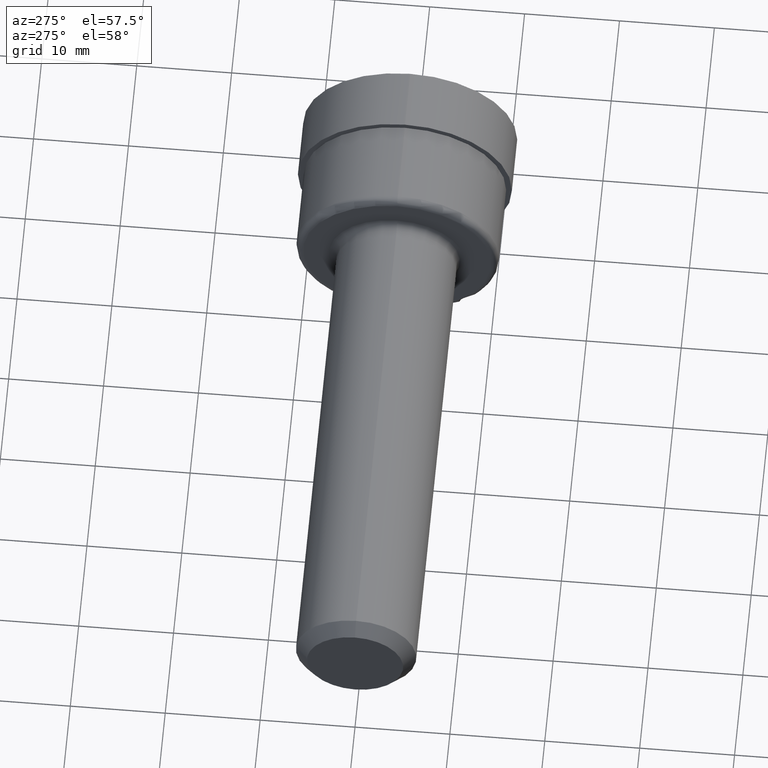
[diagram: clean part render]
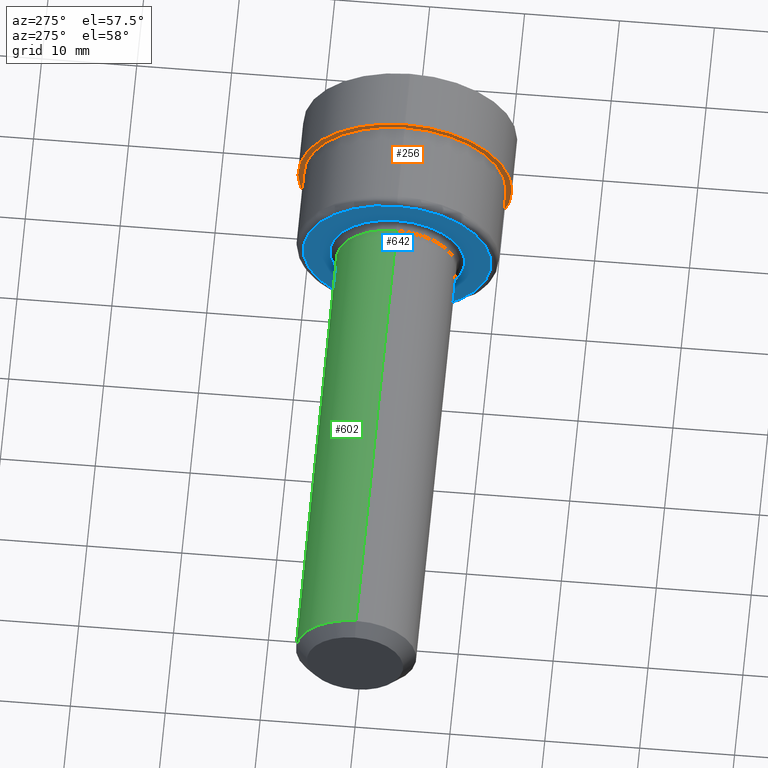
[diagram: same view with three faces highlighted in distinct colors, each labeled with its STEP entity id]
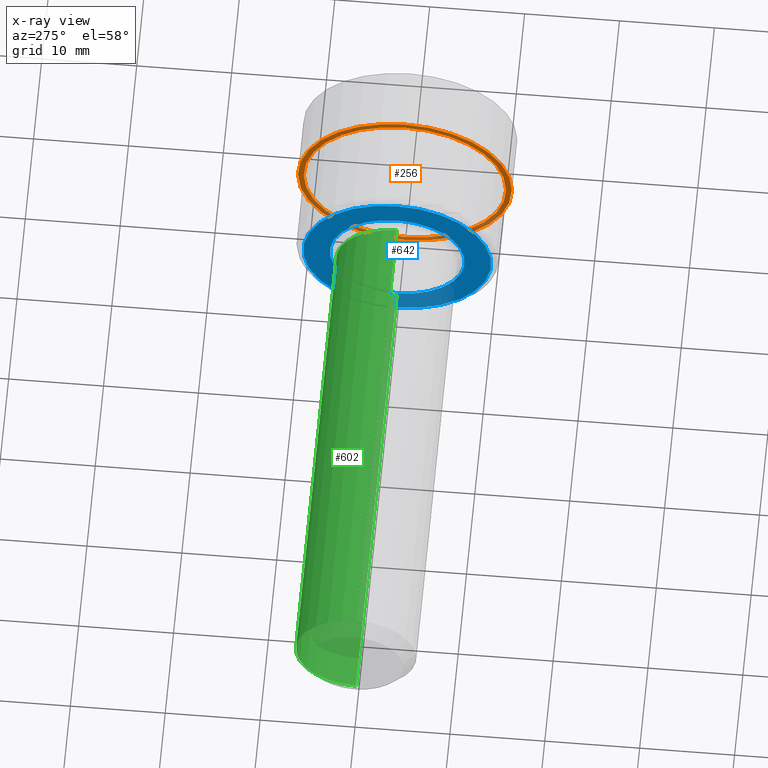
[diagram: x-ray of the same camera — body ghosted, the three highlighted faces saturated]
A machine part, auxiliary view with three faces highlighted in distinct colors.
The next image is the same camera in x-ray (body ghosted, the three faces saturated) — at least one of them is partly hidden behind the body in this view.
Their STEP definitions:

[orange] entity #256 — the highlighted planar face has unit normal (1, 0, 0).
#13 = DIRECTION ( 'NONE',  ( 1.000000000000000000, 0.000000000000000000, 0.000000000000000000 ) ) ;
#60 = DIRECTION ( 'NONE',  ( 0.000000000000000000, 0.000000000000000000, -1.000000000000000000 ) ) ;
#113 = FACE_OUTER_BOUND ( 'NONE', #147, .T. ) ;
#128 = CARTESIAN_POINT ( 'NONE',  ( 2.366999999999999993, 0.000000000000000000, 0.000000000000000000 ) ) ;
#133 = AXIS2_PLACEMENT_3D ( 'NONE', #327, #13, #60 ) ;
#138 = VERTEX_POINT ( 'NONE', #598 ) ;
#147 = EDGE_LOOP ( 'NONE', ( #332, #390 ) ) ;
#154 = CIRCLE ( 'NONE', #464, 0.4199999999999999845 ) ;
#162 = CIRCLE ( 'NONE', #656, 0.4440000000000000058 ) ;
#165 = EDGE_CURVE ( 'NONE', #628, #581, #162, .T. ) ;
#202 = EDGE_CURVE ( 'NONE', #138, #606, #575, .T. ) ;
#219 = DIRECTION ( 'NONE',  ( 0.000000000000000000, 0.000000000000000000, 1.000000000000000000 ) ) ;
#221 = CARTESIAN_POINT ( 'NONE',  ( 2.366999999999999993, 0.000000000000000000, 0.000000000000000000 ) ) ;
#228 = DIRECTION ( 'NONE',  ( 0.000000000000000000, 0.000000000000000000, 1.000000000000000000 ) ) ;
#229 = EDGE_LOOP ( 'NONE', ( #544, #676 ) ) ;
#256 = ADVANCED_FACE ( 'NONE', ( #374, #113 ), #446, .F. ) ;
#262 = DIRECTION ( 'NONE',  ( -1.000000000000000000, -0.000000000000000000, -0.000000000000000000 ) ) ;
#277 = EDGE_CURVE ( 'NONE', #606, #138, #154, .T. ) ;
#321 = DIRECTION ( 'NONE',  ( -1.000000000000000000, -0.000000000000000000, -0.000000000000000000 ) ) ;
#326 = CARTESIAN_POINT ( 'NONE',  ( 2.366999999999999993, 0.000000000000000000, 0.000000000000000000 ) ) ;
#327 = CARTESIAN_POINT ( 'NONE',  ( 2.366999999999999993, 0.4199999999999999845, 0.000000000000000000 ) ) ;
#332 = ORIENTED_EDGE ( 'NONE', *, *, #165, .T. ) ;
#374 = FACE_BOUND ( 'NONE', #229, .T. ) ;
#378 = EDGE_CURVE ( 'NONE', #581, #628, #564, .T. ) ;
#390 = ORIENTED_EDGE ( 'NONE', *, *, #378, .T. ) ;
#400 = DIRECTION ( 'NONE',  ( -1.000000000000000000, -0.000000000000000000, -0.000000000000000000 ) ) ;
#446 = PLANE ( 'NONE',  #133 ) ;
#464 = AXIS2_PLACEMENT_3D ( 'NONE', #221, #400, #622 ) ;
#501 = DIRECTION ( 'NONE',  ( -1.000000000000000000, -0.000000000000000000, -0.000000000000000000 ) ) ;
#543 = CARTESIAN_POINT ( 'NONE',  ( 2.366999999999999993, 0.000000000000000000, 0.4199999999999999845 ) ) ;
#544 = ORIENTED_EDGE ( 'NONE', *, *, #277, .F. ) ;
#545 = DIRECTION ( 'NONE',  ( 0.000000000000000000, 0.000000000000000000, 1.000000000000000000 ) ) ;
#564 = CIRCLE ( 'NONE', #678, 0.4440000000000000058 ) ;
#575 = CIRCLE ( 'NONE', #647, 0.4199999999999999845 ) ;
#581 = VERTEX_POINT ( 'NONE', #683 ) ;
#598 = CARTESIAN_POINT ( 'NONE',  ( 2.366999999999999993, 5.143516556418883174E-17, -0.4199999999999999845 ) ) ;
#606 = VERTEX_POINT ( 'NONE', #543 ) ;
#622 = DIRECTION ( 'NONE',  ( 0.000000000000000000, 0.000000000000000000, 1.000000000000000000 ) ) ;
#628 = VERTEX_POINT ( 'NONE', #671 ) ;
#647 = AXIS2_PLACEMENT_3D ( 'NONE', #652, #321, #219 ) ;
#652 = CARTESIAN_POINT ( 'NONE',  ( 2.366999999999999993, 0.000000000000000000, 0.000000000000000000 ) ) ;
#656 = AXIS2_PLACEMENT_3D ( 'NONE', #326, #262, #545 ) ;
#671 = CARTESIAN_POINT ( 'NONE',  ( 2.366999999999999993, 0.000000000000000000, 0.4440000000000000058 ) ) ;
#676 = ORIENTED_EDGE ( 'NONE', *, *, #202, .F. ) ;
#678 = AXIS2_PLACEMENT_3D ( 'NONE', #128, #501, #228 ) ;
#683 = CARTESIAN_POINT ( 'NONE',  ( 2.366999999999999993, 5.437431788214248526E-17, -0.4440000000000000058 ) ) ;

[blue] entity #642 — the highlighted planar face has unit normal (1, 0, 0).
#1 = CARTESIAN_POINT ( 'NONE',  ( 2.000000000000000000, 3.427174067413867695E-17, -0.2798499999999999877 ) ) ;
#14 = VERTEX_POINT ( 'NONE', #524 ) ;
#32 = EDGE_CURVE ( 'NONE', #14, #497, #692, .T. ) ;
#57 = AXIS2_PLACEMENT_3D ( 'NONE', #565, #459, #232 ) ;
#63 = DIRECTION ( 'NONE',  ( -1.000000000000000000, -0.000000000000000000, -0.000000000000000000 ) ) ;
#66 = ORIENTED_EDGE ( 'NONE', *, *, #172, .T. ) ;
#68 = PLANE ( 'NONE',  #448 ) ;
#135 = EDGE_LOOP ( 'NONE', ( #511, #339 ) ) ;
#163 = CARTESIAN_POINT ( 'NONE',  ( 2.000000000000000000, 0.000000000000000000, 0.3899999999999999578 ) ) ;
#172 = EDGE_CURVE ( 'NONE', #182, #576, #346, .T. ) ;
#179 = DIRECTION ( 'NONE',  ( 0.000000000000000000, 0.000000000000000000, -1.000000000000000000 ) ) ;
#182 = VERTEX_POINT ( 'NONE', #163 ) ;
#190 = CIRCLE ( 'NONE', #57, 0.3899999999999999578 ) ;
#199 = CARTESIAN_POINT ( 'NONE',  ( 2.000000000000000000, 0.000000000000000000, 0.000000000000000000 ) ) ;
#225 = EDGE_LOOP ( 'NONE', ( #66, #659 ) ) ;
#232 = DIRECTION ( 'NONE',  ( 0.000000000000000000, 0.000000000000000000, 1.000000000000000000 ) ) ;
#253 = AXIS2_PLACEMENT_3D ( 'NONE', #318, #596, #603 ) ;
#279 = DIRECTION ( 'NONE',  ( 0.000000000000000000, 0.000000000000000000, 1.000000000000000000 ) ) ;
#284 = AXIS2_PLACEMENT_3D ( 'NONE', #344, #63, #279 ) ;
#304 = EDGE_CURVE ( 'NONE', #576, #182, #190, .T. ) ;
#318 = CARTESIAN_POINT ( 'NONE',  ( 2.000000000000000000, 0.000000000000000000, 0.000000000000000000 ) ) ;
#324 = DIRECTION ( 'NONE',  ( 0.000000000000000000, 0.000000000000000000, 1.000000000000000000 ) ) ;
#337 = DIRECTION ( 'NONE',  ( 1.000000000000000000, 0.000000000000000000, 0.000000000000000000 ) ) ;
#339 = ORIENTED_EDGE ( 'NONE', *, *, #661, .F. ) ;
#344 = CARTESIAN_POINT ( 'NONE',  ( 2.000000000000000000, 0.000000000000000000, 0.000000000000000000 ) ) ;
#346 = CIRCLE ( 'NONE', #253, 0.3899999999999999578 ) ;
#381 = FACE_OUTER_BOUND ( 'NONE', #225, .T. ) ;
#448 = AXIS2_PLACEMENT_3D ( 'NONE', #616, #337, #179 ) ;
#459 = DIRECTION ( 'NONE',  ( -1.000000000000000000, -0.000000000000000000, -0.000000000000000000 ) ) ;
#497 = VERTEX_POINT ( 'NONE', #1 ) ;
#508 = DIRECTION ( 'NONE',  ( -1.000000000000000000, -0.000000000000000000, -0.000000000000000000 ) ) ;
#511 = ORIENTED_EDGE ( 'NONE', *, *, #32, .F. ) ;
#524 = CARTESIAN_POINT ( 'NONE',  ( 2.000000000000000000, 0.000000000000000000, 0.2798499999999999877 ) ) ;
#527 = CIRCLE ( 'NONE', #284, 0.2798499999999999877 ) ;
#565 = CARTESIAN_POINT ( 'NONE',  ( 2.000000000000000000, 0.000000000000000000, 0.000000000000000000 ) ) ;
#576 = VERTEX_POINT ( 'NONE', #631 ) ;
#596 = DIRECTION ( 'NONE',  ( -1.000000000000000000, -0.000000000000000000, -0.000000000000000000 ) ) ;
#599 = AXIS2_PLACEMENT_3D ( 'NONE', #199, #508, #324 ) ;
#603 = DIRECTION ( 'NONE',  ( 0.000000000000000000, 0.000000000000000000, 1.000000000000000000 ) ) ;
#605 = FACE_BOUND ( 'NONE', #135, .T. ) ;
#616 = CARTESIAN_POINT ( 'NONE',  ( 2.000000000000000000, 0.3899999999999999578, 0.000000000000000000 ) ) ;
#631 = CARTESIAN_POINT ( 'NONE',  ( 2.000000000000000000, 4.959819536546778751E-17, -0.3899999999999999578 ) ) ;
#642 = ADVANCED_FACE ( 'NONE', ( #605, #381 ), #68, .F. ) ;
#659 = ORIENTED_EDGE ( 'NONE', *, *, #304, .T. ) ;
#661 = EDGE_CURVE ( 'NONE', #497, #14, #527, .T. ) ;
#692 = CIRCLE ( 'NONE', #599, 0.2798499999999999877 ) ;

[green] entity #602 — the highlighted cylindrical surface (partial cylindrical patch) has radius 6.3462 mm, axis along (-1, -0, -0).
#67 = AXIS2_PLACEMENT_3D ( 'NONE', #510, #681, #669 ) ;
#73 = CARTESIAN_POINT ( 'NONE',  ( 1.969999999999999973, 0.000000000000000000, 0.000000000000000000 ) ) ;
#84 = ORIENTED_EDGE ( 'NONE', *, *, #554, .F. ) ;
#97 = DIRECTION ( 'NONE',  ( 0.000000000000000000, 0.000000000000000000, 1.000000000000000000 ) ) ;
#100 = CARTESIAN_POINT ( 'NONE',  ( 0.000000000000000000, 0.000000000000000000, 0.2498499999999999888 ) ) ;
#126 = DIRECTION ( 'NONE',  ( 0.000000000000000000, 0.000000000000000000, 1.000000000000000000 ) ) ;
#137 = CARTESIAN_POINT ( 'NONE',  ( 0.000000000000000000, 3.059780027669661931E-17, -0.2498499999999999888 ) ) ;
#149 = DIRECTION ( 'NONE',  ( -1.000000000000000000, -0.000000000000000000, -0.000000000000000000 ) ) ;
#155 = VECTOR ( 'NONE', #417, 39.37007874015748143 ) ;
#173 = VECTOR ( 'NONE', #149, 39.37007874015748143 ) ;
#180 = CARTESIAN_POINT ( 'NONE',  ( 1.969999999999999973, 3.243477047541764505E-17, -0.2498499999999999888 ) ) ;
#191 = CIRCLE ( 'NONE', #67, 0.2498499999999999888 ) ;
#244 = ORIENTED_EDGE ( 'NONE', *, *, #315, .F. ) ;
#257 = LINE ( 'NONE', #137, #155 ) ;
#315 = EDGE_CURVE ( 'NONE', #623, #604, #191, .T. ) ;
#340 = CARTESIAN_POINT ( 'NONE',  ( 0.05000000000000000278, 0.000000000000000000, 0.2498499999999999888 ) ) ;
#353 = FACE_OUTER_BOUND ( 'NONE', #465, .T. ) ;
#358 = CYLINDRICAL_SURFACE ( 'NONE', #608, 0.2498499999999999888 ) ;
#377 = ORIENTED_EDGE ( 'NONE', *, *, #674, .T. ) ;
#384 = VERTEX_POINT ( 'NONE', #180 ) ;
#417 = DIRECTION ( 'NONE',  ( -1.000000000000000000, -0.000000000000000000, -0.000000000000000000 ) ) ;
#422 = AXIS2_PLACEMENT_3D ( 'NONE', #73, #557, #126 ) ;
#465 = EDGE_LOOP ( 'NONE', ( #377, #502, #244, #84 ) ) ;
#502 = ORIENTED_EDGE ( 'NONE', *, *, #534, .T. ) ;
#510 = CARTESIAN_POINT ( 'NONE',  ( 0.05000000000000000278, 0.000000000000000000, 0.000000000000000000 ) ) ;
#514 = VERTEX_POINT ( 'NONE', #624 ) ;
#526 = CARTESIAN_POINT ( 'NONE',  ( 0.05000000000000000278, 3.059780027669661931E-17, -0.2498499999999999888 ) ) ;
#534 = EDGE_CURVE ( 'NONE', #384, #604, #257, .T. ) ;
#554 = EDGE_CURVE ( 'NONE', #514, #623, #570, .T. ) ;
#557 = DIRECTION ( 'NONE',  ( -1.000000000000000000, -0.000000000000000000, -0.000000000000000000 ) ) ;
#570 = LINE ( 'NONE', #100, #173 ) ;
#579 = DIRECTION ( 'NONE',  ( -1.000000000000000000, -0.000000000000000000, -0.000000000000000000 ) ) ;
#602 = ADVANCED_FACE ( 'NONE', ( #353 ), #358, .T. ) ;
#604 = VERTEX_POINT ( 'NONE', #526 ) ;
#608 = AXIS2_PLACEMENT_3D ( 'NONE', #688, #579, #97 ) ;
#617 = CIRCLE ( 'NONE', #422, 0.2498499999999999888 ) ;
#623 = VERTEX_POINT ( 'NONE', #340 ) ;
#624 = CARTESIAN_POINT ( 'NONE',  ( 1.969999999999999973, 0.000000000000000000, 0.2498499999999999888 ) ) ;
#669 = DIRECTION ( 'NONE',  ( 0.000000000000000000, 0.000000000000000000, 1.000000000000000000 ) ) ;
#674 = EDGE_CURVE ( 'NONE', #514, #384, #617, .T. ) ;
#681 = DIRECTION ( 'NONE',  ( -1.000000000000000000, -0.000000000000000000, -0.000000000000000000 ) ) ;
#688 = CARTESIAN_POINT ( 'NONE',  ( 0.000000000000000000, 0.000000000000000000, 0.000000000000000000 ) ) ;